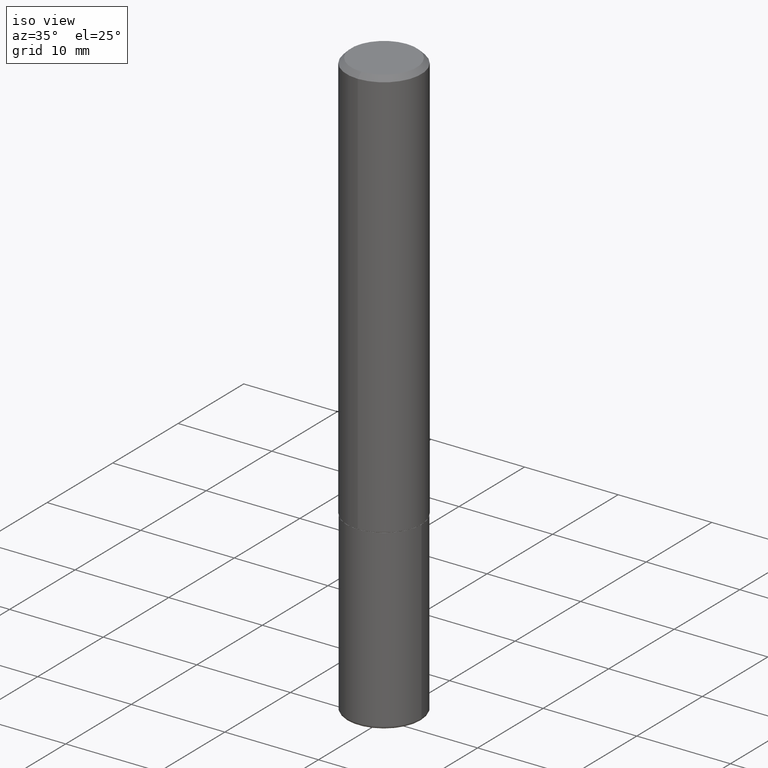
[diagram: clean part render]
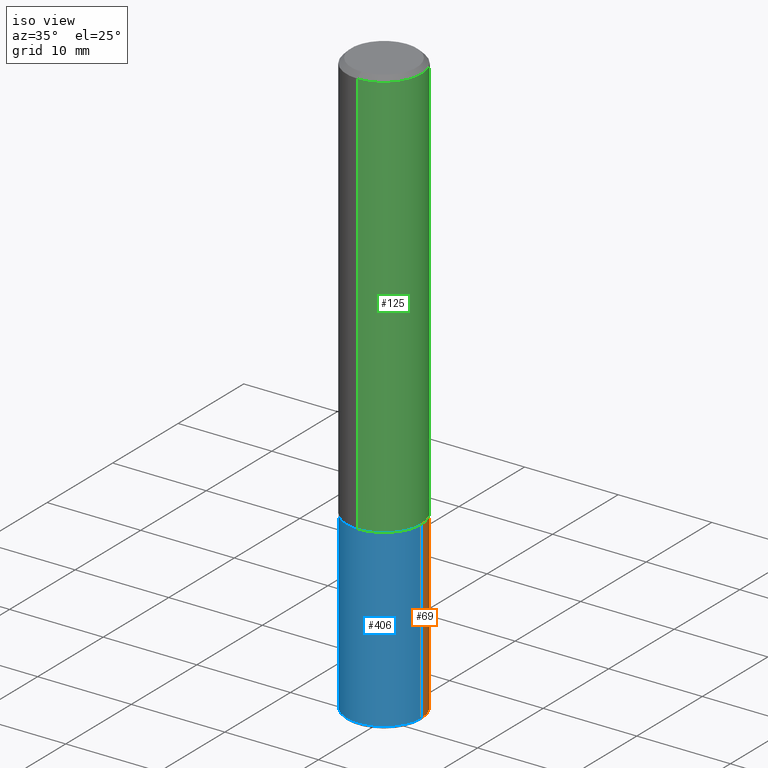
[diagram: same view with three faces highlighted in distinct colors, each labeled with its STEP entity id]
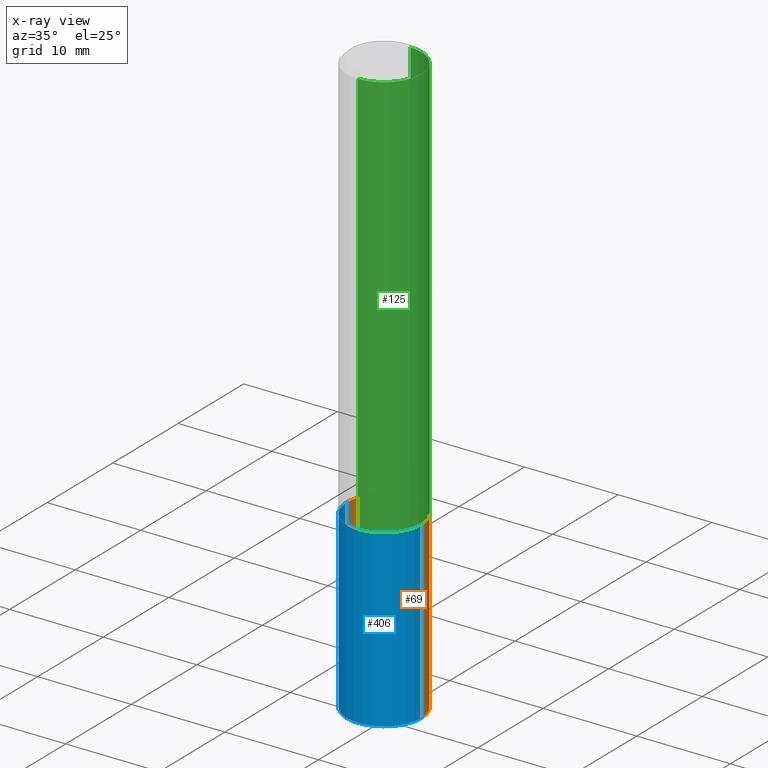
[diagram: x-ray of the same camera — body ghosted, the three highlighted faces saturated]
A machine part, iso view with three faces highlighted in distinct colors.
The next image is the same camera in x-ray (body ghosted, the three faces saturated) — at least one of them is partly hidden behind the body in this view.
Their STEP definitions:

[orange] entity #69 — the highlighted cylindrical surface (partial cylindrical patch) has radius 4.0005 mm, axis along (-0, 0, 1).
#1 = CARTESIAN_POINT ( 'NONE',  ( -0.1575000000000000289, -7.499616876112147092E-15, -2.468500000000000139 ) ) ;
#4 = AXIS2_PLACEMENT_3D ( 'NONE', #261, #385, #259 ) ;
#11 = ORIENTED_EDGE ( 'NONE', *, *, #298, .F. ) ;
#15 = VERTEX_POINT ( 'NONE', #401 ) ;
#26 = VERTEX_POINT ( 'NONE', #116 ) ;
#29 = CARTESIAN_POINT ( 'NONE',  ( 6.036639748068010694E-29, -8.618721684934306273E-15, -2.468500000000000139 ) ) ;
#40 = LINE ( 'NONE', #71, #216 ) ;
#59 = ORIENTED_EDGE ( 'NONE', *, *, #268, .T. ) ;
#66 = DIRECTION ( 'NONE',  ( -2.445468806185136597E-29, 3.491481338843145583E-15, 1.000000000000000000 ) ) ;
#69 = ADVANCED_FACE ( 'NONE', ( #294 ), #391, .T. ) ;
#71 = CARTESIAN_POINT ( 'NONE',  ( 0.1575000000000000289, -1.099816621735587283E-15, 7.679978421878599434E-30 ) ) ;
#74 = CIRCLE ( 'NONE', #328, 0.1575000000000000289 ) ;
#79 = DIRECTION ( 'NONE',  ( -2.445468806185136877E-29, 3.491481338843145188E-15, 1.000000000000000000 ) ) ;
#80 = EDGE_CURVE ( 'NONE', #15, #106, #40, .T. ) ;
#106 = VERTEX_POINT ( 'NONE', #264 ) ;
#116 = CARTESIAN_POINT ( 'NONE',  ( -0.1575000000000000289, -6.214402595283986467E-15, -1.732300000000000173 ) ) ;
#138 = VERTEX_POINT ( 'NONE', #1 ) ;
#155 = VECTOR ( 'NONE', #79, 39.37007874015748143 ) ;
#180 = EDGE_LOOP ( 'NONE', ( #59, #333, #11, #252 ) ) ;
#192 = DIRECTION ( 'NONE',  ( 1.000000000000000000, -6.982962677686267499E-15, 0.000000000000000000 ) ) ;
#197 = CIRCLE ( 'NONE', #331, 0.1575000000000000011 ) ;
#216 = VECTOR ( 'NONE', #355, 39.37007874015748143 ) ;
#252 = ORIENTED_EDGE ( 'NONE', *, *, #80, .F. ) ;
#253 = DIRECTION ( 'NONE',  ( 1.000000000000000000, -6.982962677686268288E-15, 0.000000000000000000 ) ) ;
#259 = DIRECTION ( 'NONE',  ( 1.000000000000000000, -6.982962677686267499E-15, 4.876176775795935232E-29 ) ) ;
#261 = CARTESIAN_POINT ( 'NONE',  ( 0.000000000000000000, 0.000000000000000000, 0.000000000000000000 ) ) ;
#264 = CARTESIAN_POINT ( 'NONE',  ( 0.1575000000000000289, -7.148109745013570136E-15, -1.732300000000000173 ) ) ;
#268 = EDGE_CURVE ( 'NONE', #15, #138, #197, .T. ) ;
#272 = CARTESIAN_POINT ( 'NONE',  ( -0.1575000000000000289, 1.119104808822157998E-15, -7.747322767151478386E-30 ) ) ;
#285 = DIRECTION ( 'NONE',  ( -2.445468806185136597E-29, 3.491481338843145583E-15, 1.000000000000000000 ) ) ;
#294 = FACE_OUTER_BOUND ( 'NONE', #180, .T. ) ;
#298 = EDGE_CURVE ( 'NONE', #106, #26, #74, .T. ) ;
#328 = AXIS2_PLACEMENT_3D ( 'NONE', #349, #66, #192 ) ;
#331 = AXIS2_PLACEMENT_3D ( 'NONE', #29, #285, #253 ) ;
#333 = ORIENTED_EDGE ( 'NONE', *, *, #358, .T. ) ;
#349 = CARTESIAN_POINT ( 'NONE',  ( 4.236285612954512953E-29, -6.048293123277982656E-15, -1.732300000000000173 ) ) ;
#355 = DIRECTION ( 'NONE',  ( -2.445468806185136877E-29, 3.491481338843145188E-15, 1.000000000000000000 ) ) ;
#358 = EDGE_CURVE ( 'NONE', #138, #26, #374, .T. ) ;
#374 = LINE ( 'NONE', #272, #155 ) ;
#385 = DIRECTION ( 'NONE',  ( -2.445468806185136597E-29, 3.491481338843145583E-15, 1.000000000000000000 ) ) ;
#391 = CYLINDRICAL_SURFACE ( 'NONE', #4, 0.1575000000000000289 ) ;
#401 = CARTESIAN_POINT ( 'NONE',  ( 0.1575000000000000289, -9.718538306669894543E-15, -2.468500000000000139 ) ) ;

[blue] entity #406 — the highlighted cylindrical surface (partial cylindrical patch) has radius 4.0005 mm, axis along (-0, 0, 1).
#1 = CARTESIAN_POINT ( 'NONE',  ( -0.1575000000000000289, -7.499616876112147092E-15, -2.468500000000000139 ) ) ;
#15 = VERTEX_POINT ( 'NONE', #401 ) ;
#25 = CARTESIAN_POINT ( 'NONE',  ( 4.236285612954512953E-29, -6.048293123277982656E-15, -1.732300000000000173 ) ) ;
#26 = VERTEX_POINT ( 'NONE', #116 ) ;
#27 = DIRECTION ( 'NONE',  ( -2.445468806185136597E-29, 3.491481338843145583E-15, 1.000000000000000000 ) ) ;
#40 = LINE ( 'NONE', #71, #216 ) ;
#41 = EDGE_CURVE ( 'NONE', #26, #106, #341, .T. ) ;
#49 = ORIENTED_EDGE ( 'NONE', *, *, #41, .F. ) ;
#71 = CARTESIAN_POINT ( 'NONE',  ( 0.1575000000000000289, -1.099816621735587283E-15, 7.679978421878599434E-30 ) ) ;
#79 = DIRECTION ( 'NONE',  ( -2.445468806185136877E-29, 3.491481338843145188E-15, 1.000000000000000000 ) ) ;
#80 = EDGE_CURVE ( 'NONE', #15, #106, #40, .T. ) ;
#106 = VERTEX_POINT ( 'NONE', #264 ) ;
#114 = ORIENTED_EDGE ( 'NONE', *, *, #80, .T. ) ;
#116 = CARTESIAN_POINT ( 'NONE',  ( -0.1575000000000000289, -6.214402595283986467E-15, -1.732300000000000173 ) ) ;
#138 = VERTEX_POINT ( 'NONE', #1 ) ;
#150 = DIRECTION ( 'NONE',  ( -2.445468806185136597E-29, 3.491481338843145583E-15, 1.000000000000000000 ) ) ;
#155 = VECTOR ( 'NONE', #79, 39.37007874015748143 ) ;
#164 = CIRCLE ( 'NONE', #396, 0.1575000000000000011 ) ;
#200 = ORIENTED_EDGE ( 'NONE', *, *, #358, .F. ) ;
#202 = AXIS2_PLACEMENT_3D ( 'NONE', #214, #402, #370 ) ;
#214 = CARTESIAN_POINT ( 'NONE',  ( 0.000000000000000000, 0.000000000000000000, 0.000000000000000000 ) ) ;
#216 = VECTOR ( 'NONE', #355, 39.37007874015748143 ) ;
#223 = EDGE_LOOP ( 'NONE', ( #200, #336, #114, #49 ) ) ;
#248 = CARTESIAN_POINT ( 'NONE',  ( 6.036639748068010694E-29, -8.618721684934306273E-15, -2.468500000000000139 ) ) ;
#264 = CARTESIAN_POINT ( 'NONE',  ( 0.1575000000000000289, -7.148109745013570136E-15, -1.732300000000000173 ) ) ;
#272 = CARTESIAN_POINT ( 'NONE',  ( -0.1575000000000000289, 1.119104808822157998E-15, -7.747322767151478386E-30 ) ) ;
#277 = FACE_OUTER_BOUND ( 'NONE', #223, .T. ) ;
#297 = AXIS2_PLACEMENT_3D ( 'NONE', #25, #150, #409 ) ;
#304 = CYLINDRICAL_SURFACE ( 'NONE', #202, 0.1575000000000000289 ) ;
#311 = DIRECTION ( 'NONE',  ( 1.000000000000000000, -6.982962677686268288E-15, 0.000000000000000000 ) ) ;
#336 = ORIENTED_EDGE ( 'NONE', *, *, #352, .T. ) ;
#341 = CIRCLE ( 'NONE', #297, 0.1575000000000000289 ) ;
#352 = EDGE_CURVE ( 'NONE', #138, #15, #164, .T. ) ;
#355 = DIRECTION ( 'NONE',  ( -2.445468806185136877E-29, 3.491481338843145188E-15, 1.000000000000000000 ) ) ;
#358 = EDGE_CURVE ( 'NONE', #138, #26, #374, .T. ) ;
#370 = DIRECTION ( 'NONE',  ( 1.000000000000000000, -6.982962677686267499E-15, 4.876176775795935232E-29 ) ) ;
#374 = LINE ( 'NONE', #272, #155 ) ;
#396 = AXIS2_PLACEMENT_3D ( 'NONE', #248, #27, #311 ) ;
#401 = CARTESIAN_POINT ( 'NONE',  ( 0.1575000000000000289, -9.718538306669894543E-15, -2.468500000000000139 ) ) ;
#402 = DIRECTION ( 'NONE',  ( -2.445468806185136597E-29, 3.491481338843145583E-15, 1.000000000000000000 ) ) ;
#406 = ADVANCED_FACE ( 'NONE', ( #277 ), #304, .T. ) ;
#409 = DIRECTION ( 'NONE',  ( 1.000000000000000000, -6.982962677686267499E-15, 0.000000000000000000 ) ) ;

[green] entity #125 — the highlighted cylindrical surface (partial cylindrical patch) has radius 4.0005 mm, axis along (-0, 0, 1).
#6 = CARTESIAN_POINT ( 'NONE',  ( 0.000000000000000000, 0.000000000000000000, 0.000000000000000000 ) ) ;
#19 = DIRECTION ( 'NONE',  ( -6.982962677686265922E-15, -1.000000000000000000, 3.483989149690439733E-15 ) ) ;
#38 = DIRECTION ( 'NONE',  ( -6.982962677686264344E-15, -1.000000000000000000, 3.496114991891764787E-15 ) ) ;
#68 = CARTESIAN_POINT ( 'NONE',  ( 1.119104808822180283E-15, 0.1574999999999941447, -1.731300000000000727 ) ) ;
#72 = ORIENTED_EDGE ( 'NONE', *, *, #93, .F. ) ;
#84 = ORIENTED_EDGE ( 'NONE', *, *, #142, .F. ) ;
#90 = DIRECTION ( 'NONE',  ( -2.450700573907887962E-29, 3.483989149690439338E-15, 1.000000000000000000 ) ) ;
#93 = EDGE_CURVE ( 'NONE', #369, #135, #256, .T. ) ;
#96 = VECTOR ( 'NONE', #123, 39.37007874015748143 ) ;
#97 = LINE ( 'NONE', #157, #196 ) ;
#121 = LINE ( 'NONE', #322, #96 ) ;
#122 = VERTEX_POINT ( 'NONE', #168 ) ;
#123 = DIRECTION ( 'NONE',  ( -2.450700573907887682E-29, 3.483989149690438944E-15, 1.000000000000000000 ) ) ;
#124 = DIRECTION ( 'NONE',  ( -2.450700573907887682E-29, 3.483989149690438944E-15, 1.000000000000000000 ) ) ;
#125 = ADVANCED_FACE ( 'NONE', ( #296 ), #266, .T. ) ;
#130 = AXIS2_PLACEMENT_3D ( 'NONE', #338, #90, #239 ) ;
#135 = VERTEX_POINT ( 'NONE', #289 ) ;
#142 = EDGE_CURVE ( 'NONE', #122, #369, #97, .T. ) ;
#157 = CARTESIAN_POINT ( 'NONE',  ( -1.099816621735587480E-15, -0.1575000000000000844, 5.487282910762445666E-16 ) ) ;
#168 = CARTESIAN_POINT ( 'NONE',  ( -1.099816621735545671E-15, -0.1575000000000062461, -1.731299999999999617 ) ) ;
#176 = VERTEX_POINT ( 'NONE', #68 ) ;
#189 = AXIS2_PLACEMENT_3D ( 'NONE', #6, #308, #19 ) ;
#196 = VECTOR ( 'NONE', #124, 39.37007874015748143 ) ;
#205 = ORIENTED_EDGE ( 'NONE', *, *, #363, .T. ) ;
#217 = CIRCLE ( 'NONE', #130, 0.1575000000000001954 ) ;
#230 = EDGE_CURVE ( 'NONE', #176, #135, #121, .T. ) ;
#239 = DIRECTION ( 'NONE',  ( -6.982962677686265922E-15, -1.000000000000000000, 3.469013325287948955E-15 ) ) ;
#256 = CIRCLE ( 'NONE', #319, 0.1575000000000000289 ) ;
#266 = CYLINDRICAL_SURFACE ( 'NONE', #189, 0.1575000000000000844 ) ;
#279 = EDGE_LOOP ( 'NONE', ( #205, #415, #72, #84 ) ) ;
#289 = CARTESIAN_POINT ( 'NONE',  ( 1.099816621735587480E-15, 0.1574999999999999456, -0.02000000000000061798 ) ) ;
#296 = FACE_OUTER_BOUND ( 'NONE', #279, .T. ) ;
#308 = DIRECTION ( 'NONE',  ( -2.450700573907887962E-29, 3.483989149690439338E-15, 1.000000000000000000 ) ) ;
#319 = AXIS2_PLACEMENT_3D ( 'NONE', #359, #329, #38 ) ;
#322 = CARTESIAN_POINT ( 'NONE',  ( 1.119104808822158195E-15, 0.1575000000000000844, -5.487282910762445666E-16 ) ) ;
#329 = DIRECTION ( 'NONE',  ( -2.450700573907887962E-29, 3.483989149690439338E-15, 1.000000000000000000 ) ) ;
#338 = CARTESIAN_POINT ( 'NONE',  ( 4.242897903606727500E-29, -6.031830414859058130E-15, -1.731300000000000283 ) ) ;
#359 = CARTESIAN_POINT ( 'NONE',  ( 4.901401147815792845E-31, -6.967978299380902441E-17, -0.02000000000000006981 ) ) ;
#363 = EDGE_CURVE ( 'NONE', #122, #176, #217, .T. ) ;
#369 = VERTEX_POINT ( 'NONE', #410 ) ;
#410 = CARTESIAN_POINT ( 'NONE',  ( -1.080528434649015779E-15, -0.1575000000000000844, -0.01999999999999951816 ) ) ;
#415 = ORIENTED_EDGE ( 'NONE', *, *, #230, .T. ) ;